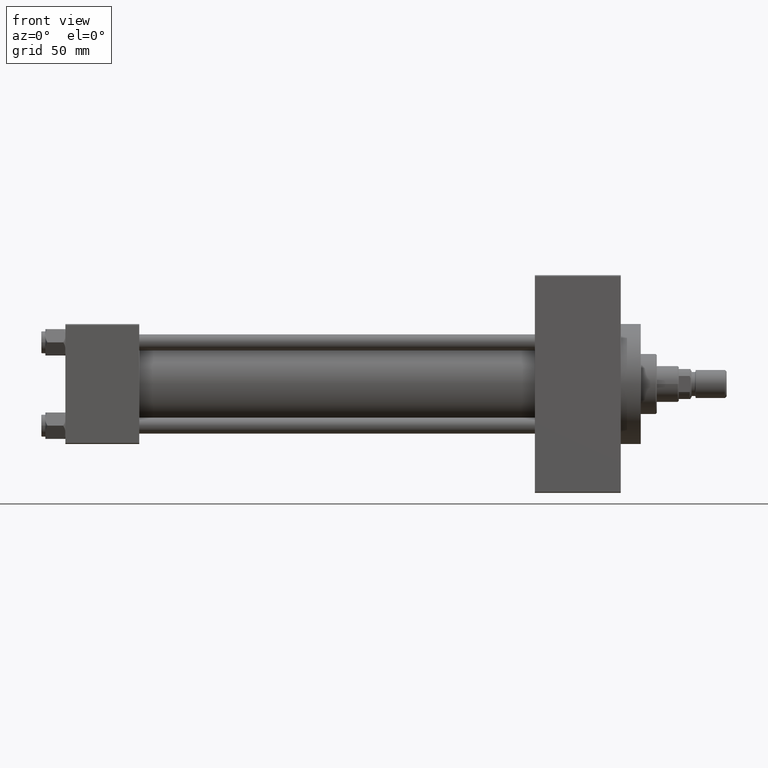
[diagram: clean part render]
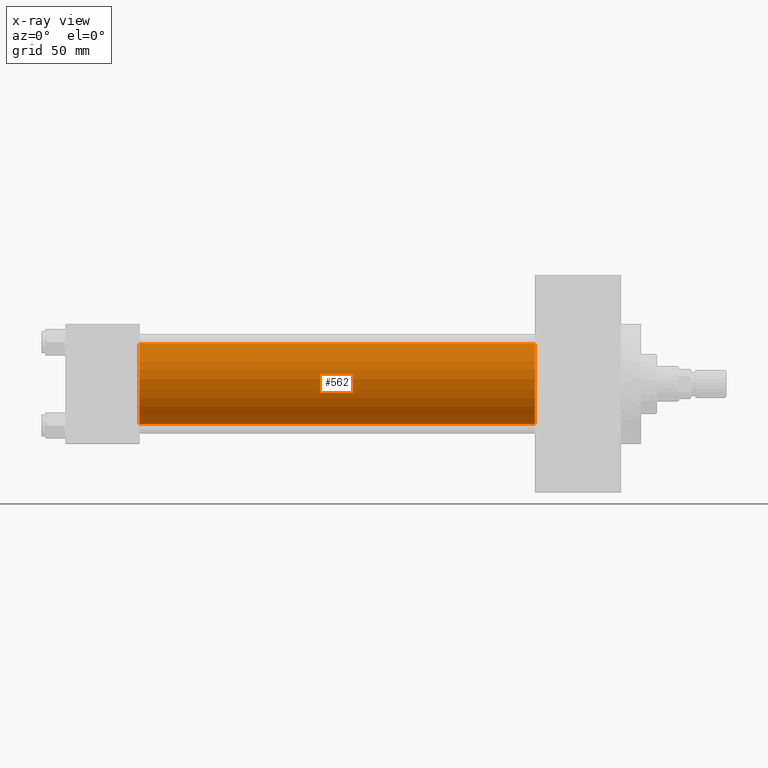
[diagram: x-ray — body ghosted, one internal face saturated and labeled with its STEP entity id]
A machine part, front view, then the same camera in x-ray: the body is ghosted and one INTERNAL B-rep face — a face not visible from any outside direction — is saturated and labeled: STEP entity #562.
In plain terms, the highlighted cylindrical surface (partial cylindrical patch) has radius 20 mm, axis along (-1, -0, -0).
Its self-contained STEP definition (entity closure, byte-faithful):
#123 = FACE_OUTER_BOUND ( 'NONE', #7279, .T. ) ;
#562 = ADVANCED_FACE ( 'NONE', ( #123 ), #3669, .F. ) ;
#1667 = DIRECTION ( 'NONE',  ( 0.000000000000000000, 0.000000000000000000, -1.000000000000000000 ) ) ;
#3669 = CYLINDRICAL_SURFACE ( 'NONE', #39461, 20.00000000000000000 ) ;
#4767 = CARTESIAN_POINT ( 'NONE',  ( 235.0000000000000284, -1.527916156705042519E-16, -20.00000000000000000 ) ) ;
#7279 = EDGE_LOOP ( 'NONE', ( #22256, #32345, #16221, #46664 ) ) ;
#9585 = LINE ( 'NONE', #21182, #26112 ) ;
#11589 = EDGE_CURVE ( 'NONE', #46415, #47203, #46962, .T. ) ;
#12128 = CARTESIAN_POINT ( 'NONE',  ( 235.0000000000000284, -2.602085213965210642E-15, 20.00000000000000000 ) ) ;
#12578 = AXIS2_PLACEMENT_3D ( 'NONE', #22950, #23452, #23697 ) ;
#13944 = VERTEX_POINT ( 'NONE', #32192 ) ;
#15468 = EDGE_CURVE ( 'NONE', #46415, #13944, #9585, .T. ) ;
#16221 = ORIENTED_EDGE ( 'NONE', *, *, #40681, .F. ) ;
#21182 = CARTESIAN_POINT ( 'NONE',  ( 235.0000000000000284, -2.602085213965210642E-15, 20.00000000000000000 ) ) ;
#22256 = ORIENTED_EDGE ( 'NONE', *, *, #11589, .T. ) ;
#22950 = CARTESIAN_POINT ( 'NONE',  ( 37.00000000000000000, -2.602085213965210642E-15, 0.000000000000000000 ) ) ;
#23452 = DIRECTION ( 'NONE',  ( 1.000000000000000000, 0.000000000000000000, 0.000000000000000000 ) ) ;
#23697 = DIRECTION ( 'NONE',  ( 0.000000000000000000, 0.000000000000000000, -1.000000000000000000 ) ) ;
#23708 = LINE ( 'NONE', #4767, #42632 ) ;
#24690 = CIRCLE ( 'NONE', #12578, 20.00000000000000000 ) ;
#26112 = VECTOR ( 'NONE', #44200, 1000.000000000000000 ) ;
#26804 = CARTESIAN_POINT ( 'NONE',  ( 37.00000000000000000, -1.527916156705042519E-16, -20.00000000000000000 ) ) ;
#30191 = DIRECTION ( 'NONE',  ( 0.000000000000000000, 0.000000000000000000, 1.000000000000000000 ) ) ;
#32192 = CARTESIAN_POINT ( 'NONE',  ( 37.00000000000000000, -2.602085213965210642E-15, 20.00000000000000000 ) ) ;
#32345 = ORIENTED_EDGE ( 'NONE', *, *, #48459, .T. ) ;
#34502 = DIRECTION ( 'NONE',  ( -1.000000000000000000, -0.000000000000000000, -0.000000000000000000 ) ) ;
#39461 = AXIS2_PLACEMENT_3D ( 'NONE', #49422, #34502, #30191 ) ;
#39605 = VERTEX_POINT ( 'NONE', #26804 ) ;
#40681 = EDGE_CURVE ( 'NONE', #13944, #39605, #24690, .T. ) ;
#42632 = VECTOR ( 'NONE', #47220, 1000.000000000000000 ) ;
#42949 = AXIS2_PLACEMENT_3D ( 'NONE', #43610, #48166, #1667 ) ;
#43610 = CARTESIAN_POINT ( 'NONE',  ( 235.0000000000000284, -2.602085213965210642E-15, 0.000000000000000000 ) ) ;
#44200 = DIRECTION ( 'NONE',  ( -1.000000000000000000, -0.000000000000000000, -0.000000000000000000 ) ) ;
#44206 = CARTESIAN_POINT ( 'NONE',  ( 235.0000000000000284, -1.527916156705042519E-16, -20.00000000000000000 ) ) ;
#46415 = VERTEX_POINT ( 'NONE', #12128 ) ;
#46664 = ORIENTED_EDGE ( 'NONE', *, *, #15468, .F. ) ;
#46962 = CIRCLE ( 'NONE', #42949, 20.00000000000000000 ) ;
#47203 = VERTEX_POINT ( 'NONE', #44206 ) ;
#47220 = DIRECTION ( 'NONE',  ( -1.000000000000000000, -0.000000000000000000, -0.000000000000000000 ) ) ;
#48166 = DIRECTION ( 'NONE',  ( 1.000000000000000000, 0.000000000000000000, 0.000000000000000000 ) ) ;
#48459 = EDGE_CURVE ( 'NONE', #47203, #39605, #23708, .T. ) ;
#49422 = CARTESIAN_POINT ( 'NONE',  ( 235.0000000000000284, -2.602085213965210642E-15, 0.000000000000000000 ) ) ;